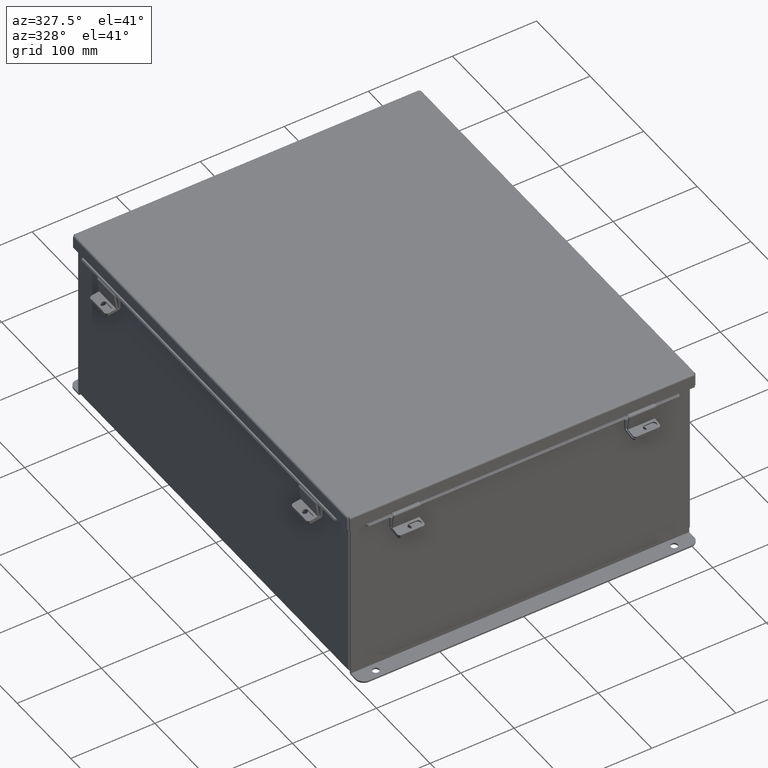
[diagram: clean part render]
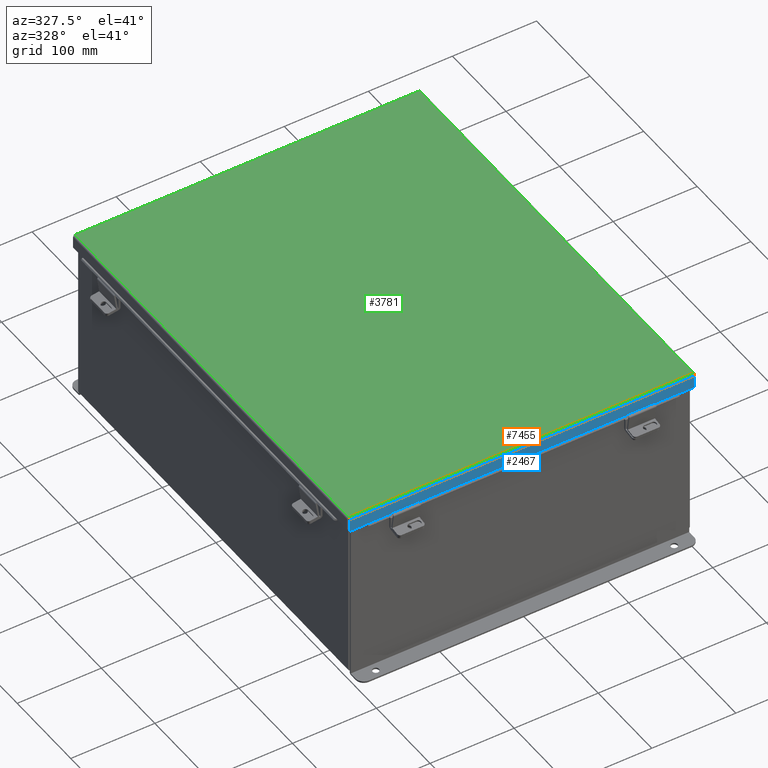
[diagram: same view with three faces highlighted in distinct colors, each labeled with its STEP entity id]
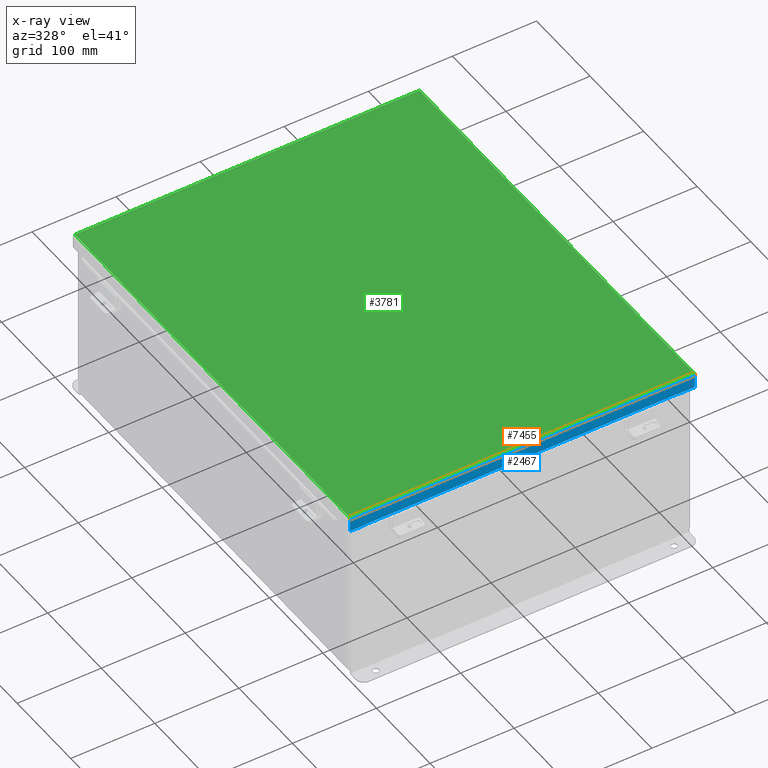
[diagram: x-ray of the same camera — body ghosted, the three highlighted faces saturated]
A machine part, auxiliary view with three faces highlighted in distinct colors.
The next image is the same camera in x-ray (body ghosted, the three faces saturated) — at least one of them is partly hidden behind the body in this view.
Their STEP definitions:

[orange] entity #7455 — the highlighted cylindrical surface (edge-blend (fillet) strip) has radius 2.2276 mm, axis along (-1, 0, -0).
#125 = DIRECTION ( 'NONE',  ( 0.0000000000000000000, -1.000000000000000000, -3.577373637655407700E-015 ) ) ;
#169 = CARTESIAN_POINT ( 'NONE',  ( -8.068550000000033900, -10.06854999999999800, -0.07470000000000015500 ) ) ;
#200 = CARTESIAN_POINT ( 'NONE',  ( -8.074478932188167600, -10.15624999999999800, 0.01300000000000010700 ) ) ;
#537 = VECTOR ( 'NONE', #3417, 39.37007874015748100 ) ;
#938 = VERTEX_POINT ( 'NONE', #3972 ) ;
#1425 = VERTEX_POINT ( 'NONE', #4955 ) ;
#1529 = CARTESIAN_POINT ( 'NONE',  ( 8.068550000000035600, -10.06854999999999800, -0.07470000000000015500 ) ) ;
#1609 = EDGE_CURVE ( 'NONE', #8450, #938, #3818, .T. ) ;
#1685 = CARTESIAN_POINT ( 'NONE',  ( -8.074478932188167600, -10.15624999999999800, 0.01300000000000010700 ) ) ;
#1719 = VECTOR ( 'NONE', #2481, 39.37007874015748100 ) ;
#1727 = LINE ( 'NONE', #4011, #1719 ) ;
#2277 = CARTESIAN_POINT ( 'NONE',  ( 8.074478932188171100, -10.15624999999999800, 0.01300000000000010700 ) ) ;
#2385 = ORIENTED_EDGE ( 'NONE', *, *, #8040, .F. ) ;
#2396 = CARTESIAN_POINT ( 'NONE',  ( -8.069538155364709200, -10.09150528945830900, -0.07241740374381158700 ) ) ;
#2481 = DIRECTION ( 'NONE',  ( -1.000000000000000000, -3.191323508412550700E-030, -0.0000000000000000000 ) ) ;
#2601 = CARTESIAN_POINT ( 'NONE',  ( 8.073490776823481600, -10.15396740374381300, -0.009955289458309115500 ) ) ;
#2745 = CARTESIAN_POINT ( 'NONE',  ( 8.070526310729414700, -10.11271738457852700, -0.06363106625866871100 ) ) ;
#3074 = EDGE_CURVE ( 'NONE', #1425, #8450, #8837, .T. ) ;
#3186 = CARTESIAN_POINT ( 'NONE',  ( -8.071020388411742600, -10.12244574734179600, -0.05713078207832070900 ) ) ;
#3417 = DIRECTION ( 'NONE',  ( -1.000000000000000000, -3.215975411700707400E-030, -0.0000000000000000000 ) ) ;
#3517 = CARTESIAN_POINT ( 'NONE',  ( 8.074478932188171100, -10.06854999999999800, 0.01300000000000010700 ) ) ;
#3818 = LINE ( 'NONE', #8161, #537 ) ;
#3921 = CARTESIAN_POINT ( 'NONE',  ( -8.072502621458777800, -10.14518106625866900, -0.03116738457852815500 ) ) ;
#3972 = CARTESIAN_POINT ( 'NONE',  ( -8.068550000000033900, -10.06854999999999800, -0.07470000000000015500 ) ) ;
#4011 = CARTESIAN_POINT ( 'NONE',  ( -8.156250000000032000, -10.15624999999999800, 0.01299999999999901400 ) ) ;
#4373 = AXIS2_PLACEMENT_3D ( 'NONE', #3517, #6534, #125 ) ;
#4622 = CARTESIAN_POINT ( 'NONE',  ( 8.069538155364727000, -10.09150528945830800, -0.07241740374381157300 ) ) ;
#4667 = CARTESIAN_POINT ( 'NONE',  ( -8.073984854505809500, -10.15624999999999800, 0.001520096845007063500 ) ) ;
#4826 = CARTESIAN_POINT ( 'NONE',  ( 8.073984854505825500, -10.15624999999999600, 0.001520096845007062900 ) ) ;
#4955 = CARTESIAN_POINT ( 'NONE',  ( 8.074478932188171100, -10.15624999999999800, 0.01300000000000010700 ) ) ;
#5088 = CARTESIAN_POINT ( 'NONE',  ( 8.068550000000035600, -10.06854999999999800, -0.07470000000000015500 ) ) ;
#5641 = CARTESIAN_POINT ( 'NONE',  ( 8.072502621458790300, -10.14518106625866700, -0.03116738457852814100 ) ) ;
#6076 = ORIENTED_EDGE ( 'NONE', *, *, #1609, .F. ) ;
#6311 = CYLINDRICAL_SURFACE ( 'NONE', #4373, 0.08770000000000026400 ) ;
#6445 = FACE_OUTER_BOUND ( 'NONE', #7410, .T. ) ;
#6534 = DIRECTION ( 'NONE',  ( 1.000000000000000000, 3.215975411700707400E-030, 0.0000000000000000000 ) ) ;
#6572 = B_SPLINE_CURVE_WITH_KNOTS ( 'NONE', 3,
 ( #169, #8486, #2396, #7781, #3186, #8523, #3921, #9340, #4667, #200 ),
 .UNSPECIFIED., .F., .F.,
 ( 4, 2, 2, 2, 4 ),
 ( 0.0000000000000000000, 0.2500000000000000000, 0.5000000000000000000, 0.7500000000000000000, 1.000000000000000000 ),
 .UNSPECIFIED. ) ;
#7410 = EDGE_LOOP ( 'NONE', ( #6076, #7718, #9768, #2385 ) ) ;
#7455 = ADVANCED_FACE ( 'NONE', ( #6445 ), #6311, .T. ) ;
#7692 = CARTESIAN_POINT ( 'NONE',  ( 8.069044077682381300, -10.08002990315499000, -0.07470000000000032200 ) ) ;
#7718 = ORIENTED_EDGE ( 'NONE', *, *, #3074, .F. ) ;
#7781 = CARTESIAN_POINT ( 'NONE',  ( -8.070526310729398700, -10.11271738457852700, -0.06363106625866869800 ) ) ;
#8040 = EDGE_CURVE ( 'NONE', #938, #9415, #6572, .T. ) ;
#8161 = CARTESIAN_POINT ( 'NONE',  ( 8.074478932188171100, -10.06854999999999800, -0.07470000000000015500 ) ) ;
#8450 = VERTEX_POINT ( 'NONE', #5088 ) ;
#8486 = CARTESIAN_POINT ( 'NONE',  ( -8.069044077682361800, -10.08002990315499000, -0.07470000000000029400 ) ) ;
#8523 = CARTESIAN_POINT ( 'NONE',  ( -8.072008543776430400, -10.13868078207831900, -0.04089574734180034100 ) ) ;
#8782 = EDGE_CURVE ( 'NONE', #1425, #9415, #1727, .T. ) ;
#8837 = B_SPLINE_CURVE_WITH_KNOTS ( 'NONE', 3,
 ( #2277, #4826, #2601, #5641, #9426, #9851, #2745, #4622, #7692, #1529 ),
 .UNSPECIFIED., .F., .F.,
 ( 4, 2, 2, 2, 4 ),
 ( 0.0000000000000000000, 0.2500000000000000000, 0.5000000000000000000, 0.7500000000000000000, 1.000000000000000000 ),
 .UNSPECIFIED. ) ;
#9340 = CARTESIAN_POINT ( 'NONE',  ( -8.073490776823467400, -10.15396740374381300, -0.009955289458309117200 ) ) ;
#9415 = VERTEX_POINT ( 'NONE', #1685 ) ;
#9426 = CARTESIAN_POINT ( 'NONE',  ( 8.072008543776448200, -10.13868078207831800, -0.04089574734180033400 ) ) ;
#9768 = ORIENTED_EDGE ( 'NONE', *, *, #8782, .T. ) ;
#9851 = CARTESIAN_POINT ( 'NONE',  ( 8.071020388411760400, -10.12244574734179800, -0.05713078207832069500 ) ) ;

[blue] entity #2467 — the highlighted planar face has unit normal (0, 1, -0).
#60 = EDGE_CURVE ( 'NONE', #9415, #249, #7710, .T. ) ;
#83 = CARTESIAN_POINT ( 'NONE',  ( 7.324478932188148100, -10.15625000000000400, 0.5967115427318782100 ) ) ;
#96 = VECTOR ( 'NONE', #614, 39.37007874015748100 ) ;
#99 = LINE ( 'NONE', #5126, #96 ) ;
#249 = VERTEX_POINT ( 'NONE', #1367 ) ;
#614 = DIRECTION ( 'NONE',  ( -1.000000000000000000, -3.216520006922595800E-030, 4.186740220174584600E-018 ) ) ;
#703 = LINE ( 'NONE', #6613, #8853 ) ;
#867 = DIRECTION ( 'NONE',  ( -1.000000000000000000, -3.216520006922595800E-030, 4.186740220174584600E-018 ) ) ;
#1195 = VECTOR ( 'NONE', #9188, 39.37007874015748100 ) ;
#1364 = DIRECTION ( 'NONE',  ( 0.0000000000000000000, -3.569293475308494500E-015, 1.000000000000000000 ) ) ;
#1367 = CARTESIAN_POINT ( 'NONE',  ( -8.074478932188167600, -10.15625000000000200, 0.6123000000000005100 ) ) ;
#1425 = VERTEX_POINT ( 'NONE', #4955 ) ;
#1603 = VERTEX_POINT ( 'NONE', #6760 ) ;
#1624 = VERTEX_POINT ( 'NONE', #5180 ) ;
#1675 = CARTESIAN_POINT ( 'NONE',  ( -7.324478932188148100, -10.15625000000000400, 0.5967115427318782100 ) ) ;
#1685 = CARTESIAN_POINT ( 'NONE',  ( -8.074478932188167600, -10.15624999999999800, 0.01300000000000010700 ) ) ;
#1699 = ORIENTED_EDGE ( 'NONE', *, *, #9636, .F. ) ;
#1719 = VECTOR ( 'NONE', #2481, 39.37007874015748100 ) ;
#1727 = LINE ( 'NONE', #4011, #1719 ) ;
#1852 = VERTEX_POINT ( 'NONE', #5424 ) ;
#1878 = EDGE_CURVE ( 'NONE', #4954, #9354, #5772, .T. ) ;
#1900 = DIRECTION ( 'NONE',  ( 0.0000000000000000000, -1.846427556282924300E-029, -1.000000000000000000 ) ) ;
#1962 = EDGE_CURVE ( 'NONE', #9354, #1603, #4297, .T. ) ;
#2467 = ADVANCED_FACE ( 'NONE', ( #9074 ), #3800, .F. ) ;
#2481 = DIRECTION ( 'NONE',  ( -1.000000000000000000, -3.191323508412550700E-030, -0.0000000000000000000 ) ) ;
#2874 = VECTOR ( 'NONE', #8398, 39.37007874015748100 ) ;
#2988 = VECTOR ( 'NONE', #1364, 39.37007874015748100 ) ;
#3151 = ORIENTED_EDGE ( 'NONE', *, *, #1962, .F. ) ;
#3229 = LINE ( 'NONE', #5125, #2988 ) ;
#3409 = CARTESIAN_POINT ( 'NONE',  ( -7.324478932188148100, -10.15625000000000200, 0.5967115427318782100 ) ) ;
#3800 = PLANE ( 'NONE',  #6252 ) ;
#4011 = CARTESIAN_POINT ( 'NONE',  ( -8.156250000000032000, -10.15624999999999800, 0.01299999999999901400 ) ) ;
#4065 = EDGE_CURVE ( 'NONE', #1852, #249, #703, .T. ) ;
#4071 = DIRECTION ( 'NONE',  ( -0.0000000000000000000, -3.569293475308494500E-015, 1.000000000000000000 ) ) ;
#4105 = CARTESIAN_POINT ( 'NONE',  ( -8.074478932188167600, -10.15624999999999800, 0.0000000000000000000 ) ) ;
#4297 = LINE ( 'NONE', #83, #2874 ) ;
#4352 = VECTOR ( 'NONE', #1900, 39.37007874015748100 ) ;
#4517 = ORIENTED_EDGE ( 'NONE', *, *, #8477, .T. ) ;
#4777 = VECTOR ( 'NONE', #4071, 39.37007874015748100 ) ;
#4954 = VERTEX_POINT ( 'NONE', #3409 ) ;
#4955 = CARTESIAN_POINT ( 'NONE',  ( 8.074478932188171100, -10.15624999999999800, 0.01300000000000010700 ) ) ;
#5125 = CARTESIAN_POINT ( 'NONE',  ( 8.074478932188171100, -10.15624999999999800, -3.606039351636827200E-014 ) ) ;
#5126 = CARTESIAN_POINT ( 'NONE',  ( -5.335640612625514100E-018, -10.15625000000000200, 0.6123000000000005100 ) ) ;
#5180 = CARTESIAN_POINT ( 'NONE',  ( 8.074478932188171100, -10.15625000000000200, 0.6123000000000005100 ) ) ;
#5407 = CARTESIAN_POINT ( 'NONE',  ( 7.324478932188148100, -10.15625000000000200, 0.5967115427318782100 ) ) ;
#5424 = CARTESIAN_POINT ( 'NONE',  ( -7.324478932188148100, -10.15625000000000200, 0.6123000000000005100 ) ) ;
#5676 = CARTESIAN_POINT ( 'NONE',  ( -7.324478932188148100, -10.15625000000000400, 0.6122999999999982900 ) ) ;
#5772 = LINE ( 'NONE', #1675, #1195 ) ;
#5787 = ORIENTED_EDGE ( 'NONE', *, *, #9163, .T. ) ;
#6166 = ORIENTED_EDGE ( 'NONE', *, *, #4065, .T. ) ;
#6252 = AXIS2_PLACEMENT_3D ( 'NONE', #8438, #6604, #6509 ) ;
#6291 = ORIENTED_EDGE ( 'NONE', *, *, #60, .F. ) ;
#6509 = DIRECTION ( 'NONE',  ( 0.0000000000000000000, -3.569293475308493700E-015, 1.000000000000000000 ) ) ;
#6604 = DIRECTION ( 'NONE',  ( 3.183015112497910400E-030, 1.000000000000000000, 3.569293475308493700E-015 ) ) ;
#6613 = CARTESIAN_POINT ( 'NONE',  ( -5.335640612625514100E-018, -10.15625000000000200, 0.6123000000000005100 ) ) ;
#6760 = CARTESIAN_POINT ( 'NONE',  ( 7.324478932188149800, -10.15625000000000200, 0.6123000000000005100 ) ) ;
#7421 = ORIENTED_EDGE ( 'NONE', *, *, #1878, .F. ) ;
#7676 = ORIENTED_EDGE ( 'NONE', *, *, #8782, .F. ) ;
#7710 = LINE ( 'NONE', #4105, #4777 ) ;
#8398 = DIRECTION ( 'NONE',  ( 7.009925220120346200E-014, 1.853823127269371600E-029, 1.000000000000000000 ) ) ;
#8438 = CARTESIAN_POINT ( 'NONE',  ( 0.0000000000000000000, -10.15624999999999800, -3.606039351636827200E-014 ) ) ;
#8464 = LINE ( 'NONE', #5676, #4352 ) ;
#8477 = EDGE_CURVE ( 'NONE', #1425, #1624, #3229, .T. ) ;
#8782 = EDGE_CURVE ( 'NONE', #1425, #9415, #1727, .T. ) ;
#8853 = VECTOR ( 'NONE', #867, 39.37007874015748100 ) ;
#8986 = EDGE_LOOP ( 'NONE', ( #1699, #6166, #6291, #7676, #4517, #5787, #3151, #7421 ) ) ;
#9074 = FACE_OUTER_BOUND ( 'NONE', #8986, .T. ) ;
#9163 = EDGE_CURVE ( 'NONE', #1624, #1603, #99, .T. ) ;
#9188 = DIRECTION ( 'NONE',  ( 1.000000000000000000, 3.215975411700707400E-030, -0.0000000000000000000 ) ) ;
#9354 = VERTEX_POINT ( 'NONE', #5407 ) ;
#9415 = VERTEX_POINT ( 'NONE', #1685 ) ;
#9636 = EDGE_CURVE ( 'NONE', #1852, #4954, #8464, .T. ) ;

[green] entity #3781 — the highlighted planar face has unit normal (-0, -0, 1).
#482 = AXIS2_PLACEMENT_3D ( 'NONE', #706, #9594, #7586 ) ;
#485 = EDGE_CURVE ( 'NONE', #7330, #2909, #4082, .T. ) ;
#537 = VECTOR ( 'NONE', #3417, 39.37007874015748100 ) ;
#706 = CARTESIAN_POINT ( 'NONE',  ( -8.537024980200822600E-018, 0.0000000000000000000, -0.07470000000000015500 ) ) ;
#938 = VERTEX_POINT ( 'NONE', #3972 ) ;
#1315 = VECTOR ( 'NONE', #3732, 39.37007874015748100 ) ;
#1495 = EDGE_CURVE ( 'NONE', #2909, #8450, #3593, .T. ) ;
#1609 = EDGE_CURVE ( 'NONE', #8450, #938, #3818, .T. ) ;
#2909 = VERTEX_POINT ( 'NONE', #6755 ) ;
#3277 = FACE_OUTER_BOUND ( 'NONE', #7593, .T. ) ;
#3417 = DIRECTION ( 'NONE',  ( -1.000000000000000000, -3.215975411700707400E-030, -0.0000000000000000000 ) ) ;
#3550 = EDGE_CURVE ( 'NONE', #938, #7330, #6149, .T. ) ;
#3593 = LINE ( 'NONE', #3637, #3833 ) ;
#3637 = CARTESIAN_POINT ( 'NONE',  ( 8.068550000000035600, 10.07447893218813400, -0.07470000000000015500 ) ) ;
#3732 = DIRECTION ( 'NONE',  ( 3.166671605124525800E-030, 1.000000000000000000, 1.853823127269377700E-029 ) ) ;
#3781 = ADVANCED_FACE ( 'NONE', ( #3277 ), #5752, .T. ) ;
#3818 = LINE ( 'NONE', #8161, #537 ) ;
#3833 = VECTOR ( 'NONE', #9007, 39.37007874015748100 ) ;
#3972 = CARTESIAN_POINT ( 'NONE',  ( -8.068550000000033900, -10.06854999999999800, -0.07470000000000015500 ) ) ;
#4082 = LINE ( 'NONE', #4295, #4206 ) ;
#4206 = VECTOR ( 'NONE', #8721, 39.37007874015748100 ) ;
#4295 = CARTESIAN_POINT ( 'NONE',  ( -8.074478932188167600, 10.06854999999999800, -0.07470000000000015500 ) ) ;
#5088 = CARTESIAN_POINT ( 'NONE',  ( 8.068550000000035600, -10.06854999999999800, -0.07470000000000015500 ) ) ;
#5752 = PLANE ( 'NONE',  #482 ) ;
#6033 = ORIENTED_EDGE ( 'NONE', *, *, #1495, .T. ) ;
#6149 = LINE ( 'NONE', #8399, #1315 ) ;
#6242 = ORIENTED_EDGE ( 'NONE', *, *, #485, .T. ) ;
#6755 = CARTESIAN_POINT ( 'NONE',  ( 8.068550000000035600, 10.06854999999999800, -0.07470000000000015500 ) ) ;
#6757 = ORIENTED_EDGE ( 'NONE', *, *, #3550, .T. ) ;
#7177 = ORIENTED_EDGE ( 'NONE', *, *, #1609, .T. ) ;
#7330 = VERTEX_POINT ( 'NONE', #8537 ) ;
#7586 = DIRECTION ( 'NONE',  ( -1.000000000000000000, -3.215975411700707400E-030, 0.0000000000000000000 ) ) ;
#7593 = EDGE_LOOP ( 'NONE', ( #6242, #6033, #7177, #6757 ) ) ;
#8161 = CARTESIAN_POINT ( 'NONE',  ( 8.074478932188171100, -10.06854999999999800, -0.07470000000000015500 ) ) ;
#8399 = CARTESIAN_POINT ( 'NONE',  ( -8.068550000000033900, -10.07447893218813400, -0.07470000000000015500 ) ) ;
#8450 = VERTEX_POINT ( 'NONE', #5088 ) ;
#8537 = CARTESIAN_POINT ( 'NONE',  ( -8.068550000000033900, 10.06854999999999800, -0.07470000000000015500 ) ) ;
#8721 = DIRECTION ( 'NONE',  ( 1.000000000000000000, 3.215975411700707400E-030, -0.0000000000000000000 ) ) ;
#9007 = DIRECTION ( 'NONE',  ( -3.166671605124525800E-030, -1.000000000000000000, -1.853823127269377700E-029 ) ) ;
#9594 = DIRECTION ( 'NONE',  ( 5.938065620492508100E-059, -1.846427556282924300E-029, -1.000000000000000000 ) ) ;